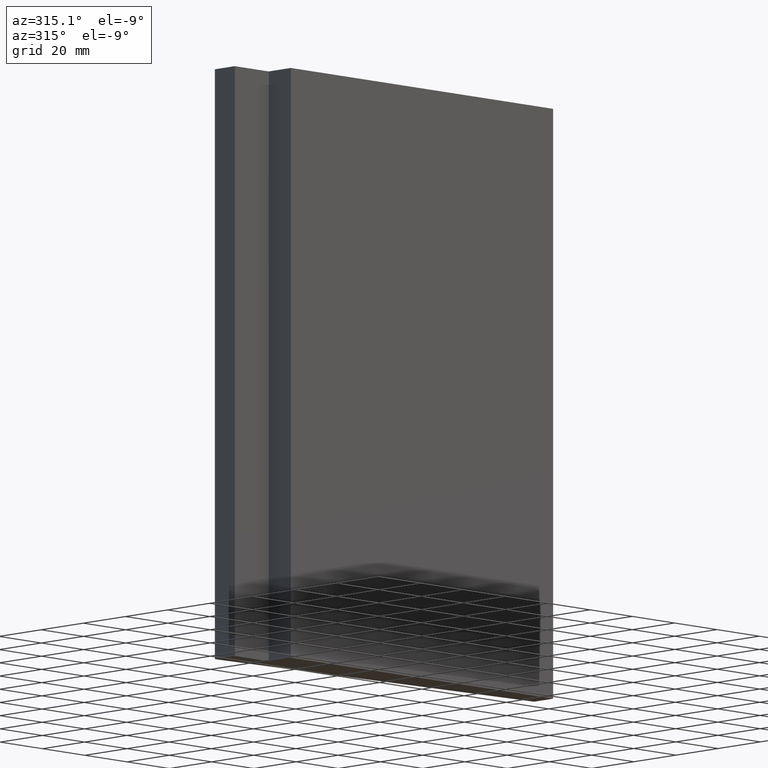
[diagram: clean part render]
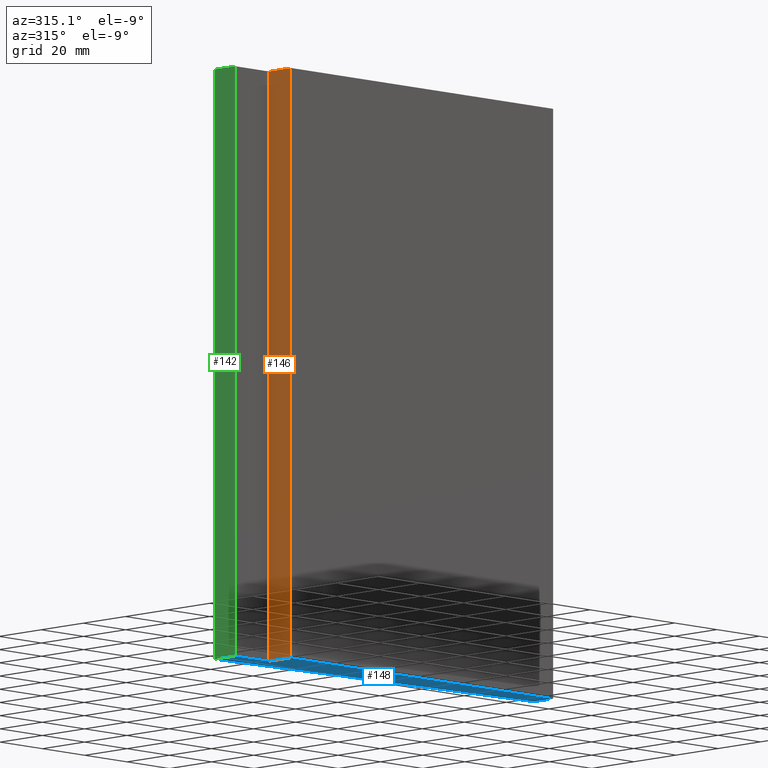
[diagram: same view with three faces highlighted in distinct colors, each labeled with its STEP entity id]
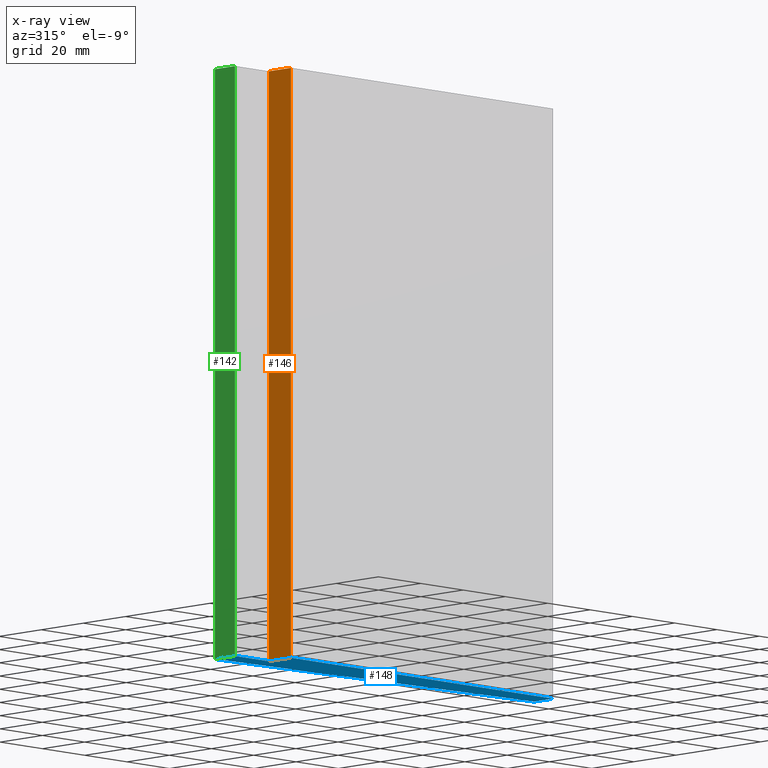
[diagram: x-ray of the same camera — body ghosted, the three highlighted faces saturated]
A machine part, auxiliary view with three faces highlighted in distinct colors.
The next image is the same camera in x-ray (body ghosted, the three faces saturated) — at least one of them is partly hidden behind the body in this view.
Their STEP definitions:

[orange] entity #146 — the highlighted planar face has unit normal (-1, -0, 0).
#20=FACE_OUTER_BOUND('',#28,.T.);
#28=EDGE_LOOP('',(#117,#118,#119,#120));
#32=LINE('',#213,#50);
#46=LINE('',#240,#64);
#47=LINE('',#242,#65);
#48=LINE('',#243,#66);
#50=VECTOR('',#176,10.);
#64=VECTOR('',#198,10.);
#65=VECTOR('',#201,10.);
#66=VECTOR('',#202,10.);
#68=VERTEX_POINT('',#210);
#69=VERTEX_POINT('',#212);
#77=VERTEX_POINT('',#236);
#78=VERTEX_POINT('',#238);
#80=EDGE_CURVE('',#68,#69,#32,.T.);
#94=EDGE_CURVE('',#77,#78,#46,.T.);
#95=EDGE_CURVE('',#68,#77,#47,.T.);
#96=EDGE_CURVE('',#69,#78,#48,.T.);
#117=ORIENTED_EDGE('',*,*,#95,.T.);
#118=ORIENTED_EDGE('',*,*,#94,.T.);
#119=ORIENTED_EDGE('',*,*,#96,.F.);
#120=ORIENTED_EDGE('',*,*,#80,.F.);
#138=PLANE('',#168);
#146=ADVANCED_FACE('',(#20),#138,.T.);
#168=AXIS2_PLACEMENT_3D('',#241,#199,#200);
#176=DIRECTION('',(0.,0.,1.));
#198=DIRECTION('',(0.,0.,1.));
#199=DIRECTION('center_axis',(-1.,-5.07530525542929E-15,0.));
#200=DIRECTION('ref_axis',(5.07530525542929E-15,-1.,0.));
#201=DIRECTION('',(5.07530525542929E-15,-1.,0.));
#202=DIRECTION('',(5.07530525542929E-15,-1.,0.));
#210=CARTESIAN_POINT('',(-62.,10.5,0.));
#212=CARTESIAN_POINT('',(-62.,10.5,200.));
#213=CARTESIAN_POINT('',(-62.,10.5,0.));
#236=CARTESIAN_POINT('',(-62.,-8.88178419700125E-15,0.));
#238=CARTESIAN_POINT('',(-62.,-8.88178419700125E-15,200.));
#240=CARTESIAN_POINT('',(-62.,-8.88178419700125E-15,0.));
#241=CARTESIAN_POINT('Origin',(-62.,10.5,0.));
#242=CARTESIAN_POINT('',(-62.,10.5,0.));
#243=CARTESIAN_POINT('',(-62.,10.5,200.));

[blue] entity #148 — the highlighted planar face has unit normal (0, 0, 1).
#22=FACE_OUTER_BOUND('',#30,.T.);
#30=EDGE_LOOP('',(#127,#128,#129,#130,#131,#132));
#31=LINE('',#211,#49);
#35=LINE('',#219,#53);
#38=LINE('',#225,#56);
#41=LINE('',#231,#59);
#44=LINE('',#237,#62);
#47=LINE('',#242,#65);
#49=VECTOR('',#175,10.);
#53=VECTOR('',#181,10.);
#56=VECTOR('',#186,10.);
#59=VECTOR('',#191,10.);
#62=VECTOR('',#196,10.);
#65=VECTOR('',#201,10.);
#67=VERTEX_POINT('',#209);
#68=VERTEX_POINT('',#210);
#71=VERTEX_POINT('',#218);
#73=VERTEX_POINT('',#224);
#75=VERTEX_POINT('',#230);
#77=VERTEX_POINT('',#236);
#79=EDGE_CURVE('',#67,#68,#31,.T.);
#83=EDGE_CURVE('',#71,#67,#35,.T.);
#86=EDGE_CURVE('',#73,#71,#38,.T.);
#89=EDGE_CURVE('',#75,#73,#41,.T.);
#92=EDGE_CURVE('',#77,#75,#44,.T.);
#95=EDGE_CURVE('',#68,#77,#47,.T.);
#127=ORIENTED_EDGE('',*,*,#95,.F.);
#128=ORIENTED_EDGE('',*,*,#79,.F.);
#129=ORIENTED_EDGE('',*,*,#83,.F.);
#130=ORIENTED_EDGE('',*,*,#86,.F.);
#131=ORIENTED_EDGE('',*,*,#89,.F.);
#132=ORIENTED_EDGE('',*,*,#92,.F.);
#140=PLANE('',#170);
#148=ADVANCED_FACE('',(#22),#140,.F.);
#170=AXIS2_PLACEMENT_3D('',#245,#205,#206);
#175=DIRECTION('',(1.,-6.93889390390723E-16,0.));
#181=DIRECTION('',(0.,-1.,0.));
#186=DIRECTION('',(-0.996927484072214,0.0783300166056738,0.));
#191=DIRECTION('',(0.,1.,0.));
#196=DIRECTION('',(1.,1.55227784985289E-16,0.));
#201=DIRECTION('',(5.07530525542929E-15,-1.,0.));
#205=DIRECTION('center_axis',(0.,0.,1.));
#206=DIRECTION('ref_axis',(1.,0.,0.));
#209=CARTESIAN_POINT('',(-78.,10.5,0.));
#210=CARTESIAN_POINT('',(-62.,10.5,0.));
#211=CARTESIAN_POINT('',(-78.,10.5,0.));
#218=CARTESIAN_POINT('',(-78.,20.,0.));
#219=CARTESIAN_POINT('',(-78.,20.,0.));
#224=CARTESIAN_POINT('',(62.,9.00000000000001,0.));
#225=CARTESIAN_POINT('',(62.,9.00000000000001,0.));
#230=CARTESIAN_POINT('',(62.,1.11022302462516E-14,0.));
#231=CARTESIAN_POINT('',(62.,1.11022302462516E-14,0.));
#236=CARTESIAN_POINT('',(-62.,-8.88178419700125E-15,0.));
#237=CARTESIAN_POINT('',(-62.,-8.14601509192424E-15,0.));
#242=CARTESIAN_POINT('',(-62.,10.5,0.));
#245=CARTESIAN_POINT('Origin',(-8.00000000000002,9.99999999999999,0.));

[green] entity #142 — the highlighted planar face has unit normal (-1, 0, 0).
#16=FACE_OUTER_BOUND('',#24,.T.);
#24=EDGE_LOOP('',(#101,#102,#103,#104));
#34=LINE('',#216,#52);
#35=LINE('',#219,#53);
#36=LINE('',#221,#54);
#37=LINE('',#222,#55);
#52=VECTOR('',#178,10.);
#53=VECTOR('',#181,10.);
#54=VECTOR('',#182,10.);
#55=VECTOR('',#183,10.);
#67=VERTEX_POINT('',#209);
#70=VERTEX_POINT('',#214);
#71=VERTEX_POINT('',#218);
#72=VERTEX_POINT('',#220);
#82=EDGE_CURVE('',#67,#70,#34,.T.);
#83=EDGE_CURVE('',#71,#67,#35,.T.);
#84=EDGE_CURVE('',#72,#70,#36,.T.);
#85=EDGE_CURVE('',#71,#72,#37,.T.);
#101=ORIENTED_EDGE('',*,*,#83,.T.);
#102=ORIENTED_EDGE('',*,*,#82,.T.);
#103=ORIENTED_EDGE('',*,*,#84,.F.);
#104=ORIENTED_EDGE('',*,*,#85,.F.);
#134=PLANE('',#164);
#142=ADVANCED_FACE('',(#16),#134,.T.);
#164=AXIS2_PLACEMENT_3D('',#217,#179,#180);
#178=DIRECTION('',(0.,0.,1.));
#179=DIRECTION('center_axis',(-1.,0.,0.));
#180=DIRECTION('ref_axis',(0.,-1.,0.));
#181=DIRECTION('',(0.,-1.,0.));
#182=DIRECTION('',(0.,-1.,0.));
#183=DIRECTION('',(0.,0.,1.));
#209=CARTESIAN_POINT('',(-78.,10.5,0.));
#214=CARTESIAN_POINT('',(-78.,10.5,200.));
#216=CARTESIAN_POINT('',(-78.,10.5,0.));
#217=CARTESIAN_POINT('Origin',(-78.,20.,0.));
#218=CARTESIAN_POINT('',(-78.,20.,0.));
#219=CARTESIAN_POINT('',(-78.,20.,0.));
#220=CARTESIAN_POINT('',(-78.,20.,200.));
#221=CARTESIAN_POINT('',(-78.,20.,200.));
#222=CARTESIAN_POINT('',(-78.,20.,0.));